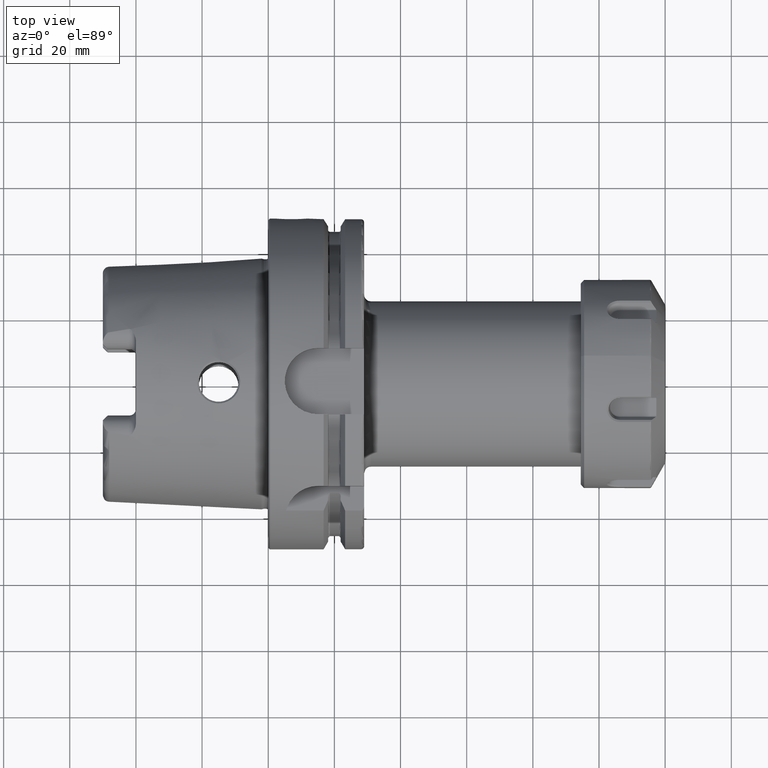
[diagram: clean part render]
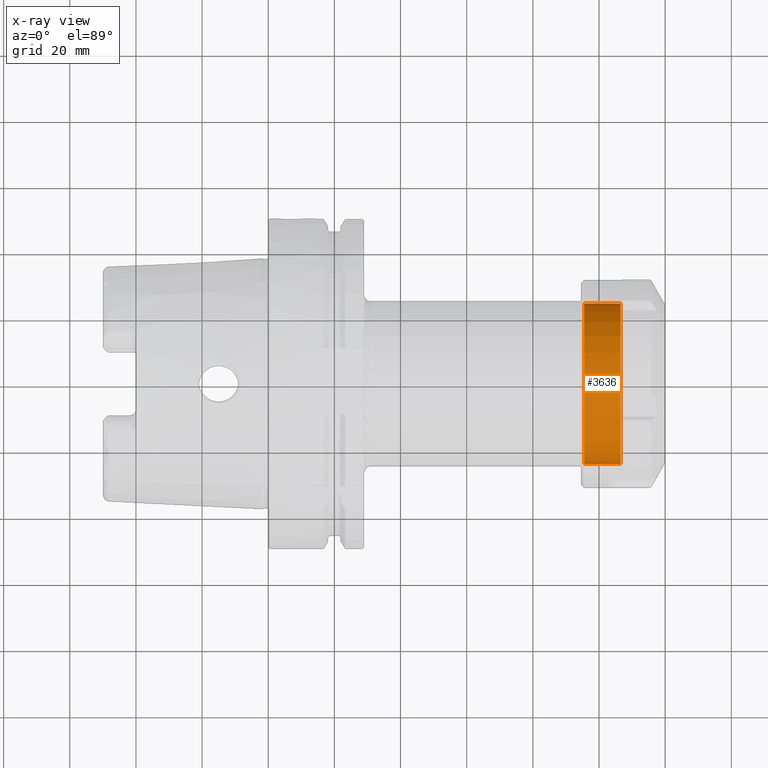
[diagram: x-ray — body ghosted, one internal face saturated and labeled with its STEP entity id]
A machine part, top view, then the same camera in x-ray: the body is ghosted and one INTERNAL B-rep face — a face not visible from any outside direction — is saturated and labeled: STEP entity #3636.
In plain terms, the highlighted cylindrical surface (bore or boss wall) has radius 24.3 mm, axis along (1, 0, 0).
Its self-contained STEP definition (entity closure, byte-faithful):
#508=FACE_OUTER_BOUND('',#727,.T.);
#727=EDGE_LOOP('',(#3296,#3297,#3298,#3299,#3300));
#920=LINE('',#8157,#1109);
#1109=VECTOR('',#5106,24.3);
#1344=CIRCLE('',#4113,24.3);
#1345=CIRCLE('',#4115,24.3);
#1346=CIRCLE('',#4116,24.3);
#1715=VERTEX_POINT('',#8151);
#1716=VERTEX_POINT('',#8154);
#1717=VERTEX_POINT('',#8155);
#2250=EDGE_CURVE('',#1715,#1715,#1344,.T.);
#2251=EDGE_CURVE('',#1716,#1717,#1345,.T.);
#2252=EDGE_CURVE('',#1716,#1715,#920,.T.);
#2253=EDGE_CURVE('',#1717,#1716,#1346,.T.);
#3296=ORIENTED_EDGE('',*,*,#2251,.F.);
#3297=ORIENTED_EDGE('',*,*,#2252,.T.);
#3298=ORIENTED_EDGE('',*,*,#2250,.T.);
#3299=ORIENTED_EDGE('',*,*,#2252,.F.);
#3300=ORIENTED_EDGE('',*,*,#2253,.F.);
#3455=CYLINDRICAL_SURFACE('',#4114,24.3);
#3636=ADVANCED_FACE('',(#508),#3455,.F.);
#4113=AXIS2_PLACEMENT_3D('',#8152,#5100,#5101);
#4114=AXIS2_PLACEMENT_3D('',#8153,#5102,#5103);
#4115=AXIS2_PLACEMENT_3D('',#8156,#5104,#5105);
#4116=AXIS2_PLACEMENT_3D('',#8158,#5107,#5108);
#5100=DIRECTION('center_axis',(1.,0.,0.));
#5101=DIRECTION('ref_axis',(0.,1.,0.));
#5102=DIRECTION('center_axis',(1.,0.,0.));
#5103=DIRECTION('ref_axis',(0.,1.,0.));
#5104=DIRECTION('center_axis',(1.,0.,0.));
#5105=DIRECTION('ref_axis',(0.,1.,0.));
#5106=DIRECTION('',(1.,0.,0.));
#5107=DIRECTION('center_axis',(1.,0.,0.));
#5108=DIRECTION('ref_axis',(0.,1.,0.));
#8151=CARTESIAN_POINT('',(-0.75,-24.3,0.));
#8152=CARTESIAN_POINT('Origin',(-0.75,0.,0.));
#8153=CARTESIAN_POINT('Origin',(-12.75,0.,0.));
#8154=CARTESIAN_POINT('',(-11.75,-24.3,0.));
#8155=CARTESIAN_POINT('',(-11.75,-24.2995810646731,0.142688757016035));
#8156=CARTESIAN_POINT('Origin',(-11.75,0.,0.));
#8157=CARTESIAN_POINT('',(-12.75,-24.3,-2.97589172192807E-15));
#8158=CARTESIAN_POINT('Origin',(-11.75,0.,0.));